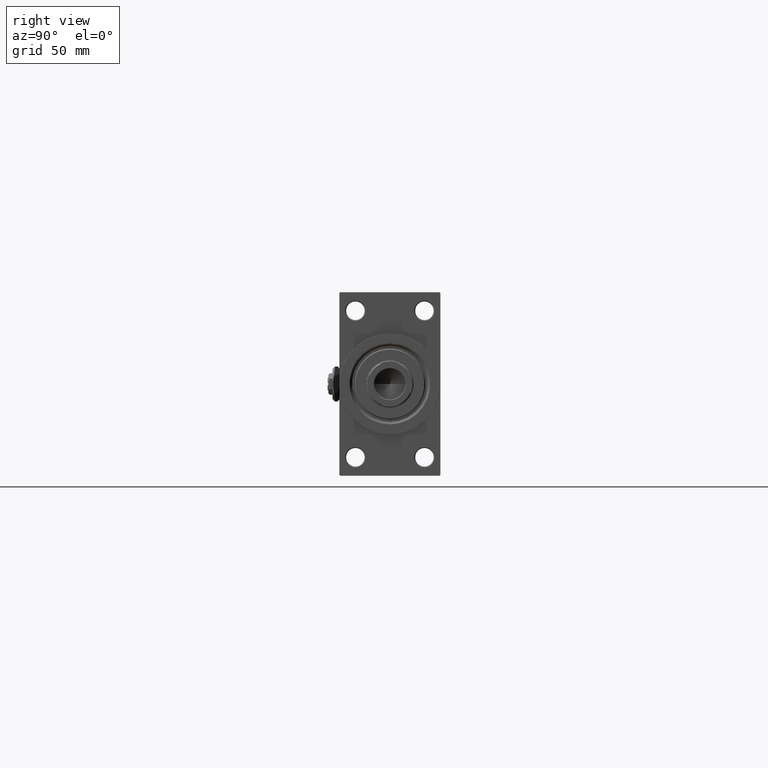
[diagram: clean part render]
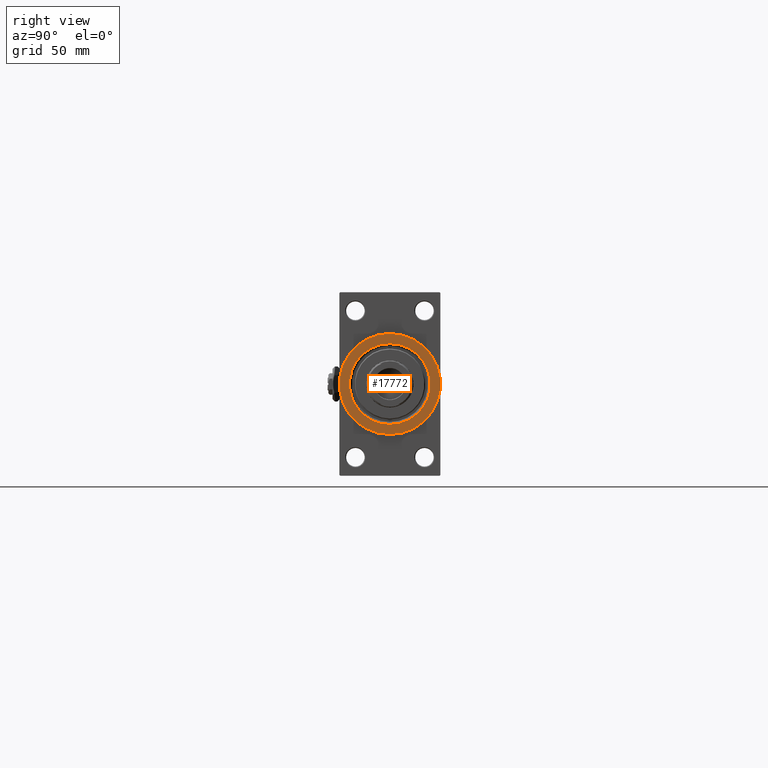
[diagram: same view with one face highlighted and labeled with its STEP entity id]
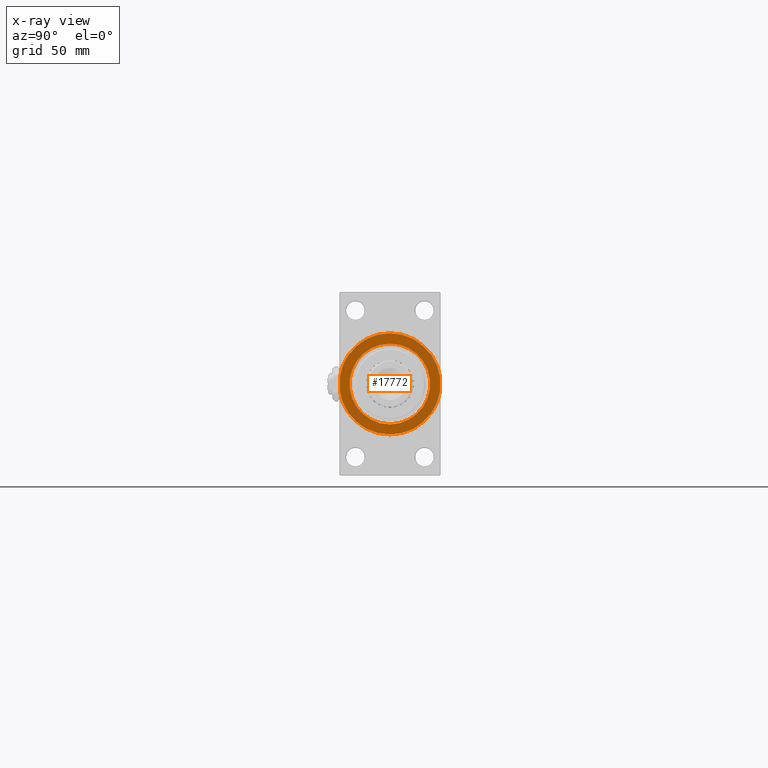
[diagram: x-ray of the same camera — body ghosted, the highlighted face saturated]
A machine part, right view. The second image highlights one B-rep face of the part: STEP entity #17772.
The next image is the same camera in x-ray: the body ghosted, the highlighted face saturated — about 0% of this face is hidden behind the body in this view.
In plain terms, the highlighted planar face has unit normal (1, 0, 0).
Its self-contained STEP definition (entity closure, byte-faithful):
#353 = VERTEX_POINT ( 'NONE', #31219 ) ;
#734 = AXIS2_PLACEMENT_3D ( 'NONE', #39861, #48046, #29380 ) ;
#2755 = CARTESIAN_POINT ( 'NONE',  ( 377.9999999999999432, 3.673940397442059178E-15, -30.00000000000000000 ) ) ;
#3329 = CIRCLE ( 'NONE', #9687, 30.00000000000000000 ) ;
#4506 = CIRCLE ( 'NONE', #22012, 24.00000000000002487 ) ;
#6047 = EDGE_CURVE ( 'NONE', #353, #48743, #25931, .T. ) ;
#6735 = ORIENTED_EDGE ( 'NONE', *, *, #23717, .T. ) ;
#7648 = ORIENTED_EDGE ( 'NONE', *, *, #6047, .T. ) ;
#8177 = DIRECTION ( 'NONE',  ( 1.000000000000000000, 0.000000000000000000, 0.000000000000000000 ) ) ;
#8234 = FACE_BOUND ( 'NONE', #34065, .T. ) ;
#9295 = DIRECTION ( 'NONE',  ( -1.000000000000000000, -0.000000000000000000, -0.000000000000000000 ) ) ;
#9687 = AXIS2_PLACEMENT_3D ( 'NONE', #38076, #8177, #35094 ) ;
#9705 = CARTESIAN_POINT ( 'NONE',  ( 377.9999999999999432, 0.000000000000000000, 0.000000000000000000 ) ) ;
#10987 = CARTESIAN_POINT ( 'NONE',  ( 377.9999999999999432, 0.000000000000000000, 30.00000000000000000 ) ) ;
#11920 = ORIENTED_EDGE ( 'NONE', *, *, #44849, .T. ) ;
#13169 = CARTESIAN_POINT ( 'NONE',  ( 377.9999999999999432, 0.000000000000000000, -24.00000000000002487 ) ) ;
#17250 = CARTESIAN_POINT ( 'NONE',  ( 377.9999999999999432, 0.000000000000000000, 0.000000000000000000 ) ) ;
#17772 = ADVANCED_FACE ( 'NONE', ( #8234, #38629 ), #32399, .T. ) ;
#20920 = DIRECTION ( 'NONE',  ( -1.000000000000000000, -0.000000000000000000, -0.000000000000000000 ) ) ;
#22012 = AXIS2_PLACEMENT_3D ( 'NONE', #39347, #20920, #35367 ) ;
#23717 = EDGE_CURVE ( 'NONE', #48743, #353, #4506, .T. ) ;
#23789 = ORIENTED_EDGE ( 'NONE', *, *, #38766, .T. ) ;
#24500 = DIRECTION ( 'NONE',  ( 0.000000000000000000, 0.000000000000000000, -1.000000000000000000 ) ) ;
#25931 = CIRCLE ( 'NONE', #26710, 24.00000000000002487 ) ;
#26710 = AXIS2_PLACEMENT_3D ( 'NONE', #17250, #9295, #24500 ) ;
#29380 = DIRECTION ( 'NONE',  ( 0.000000000000000000, 0.000000000000000000, -1.000000000000000000 ) ) ;
#31219 = CARTESIAN_POINT ( 'NONE',  ( 377.9999999999999432, 2.939152317953650655E-15, 24.00000000000002487 ) ) ;
#32399 = PLANE ( 'NONE',  #734 ) ;
#32842 = CIRCLE ( 'NONE', #47162, 30.00000000000000000 ) ;
#34065 = EDGE_LOOP ( 'NONE', ( #6735, #7648 ) ) ;
#35094 = DIRECTION ( 'NONE',  ( 0.000000000000000000, 0.000000000000000000, -1.000000000000000000 ) ) ;
#35367 = DIRECTION ( 'NONE',  ( 0.000000000000000000, 0.000000000000000000, -1.000000000000000000 ) ) ;
#36284 = VERTEX_POINT ( 'NONE', #2755 ) ;
#38076 = CARTESIAN_POINT ( 'NONE',  ( 377.9999999999999432, 0.000000000000000000, 0.000000000000000000 ) ) ;
#38629 = FACE_OUTER_BOUND ( 'NONE', #40077, .T. ) ;
#38766 = EDGE_CURVE ( 'NONE', #44653, #36284, #3329, .T. ) ;
#39347 = CARTESIAN_POINT ( 'NONE',  ( 377.9999999999999432, 0.000000000000000000, 0.000000000000000000 ) ) ;
#39351 = DIRECTION ( 'NONE',  ( 0.000000000000000000, 0.000000000000000000, -1.000000000000000000 ) ) ;
#39861 = CARTESIAN_POINT ( 'NONE',  ( 377.9999999999999432, 0.000000000000000000, 0.000000000000000000 ) ) ;
#40077 = EDGE_LOOP ( 'NONE', ( #23789, #11920 ) ) ;
#43589 = DIRECTION ( 'NONE',  ( 1.000000000000000000, 0.000000000000000000, 0.000000000000000000 ) ) ;
#44653 = VERTEX_POINT ( 'NONE', #10987 ) ;
#44849 = EDGE_CURVE ( 'NONE', #36284, #44653, #32842, .T. ) ;
#47162 = AXIS2_PLACEMENT_3D ( 'NONE', #9705, #43589, #39351 ) ;
#48046 = DIRECTION ( 'NONE',  ( 1.000000000000000000, 0.000000000000000000, 0.000000000000000000 ) ) ;
#48743 = VERTEX_POINT ( 'NONE', #13169 ) ;